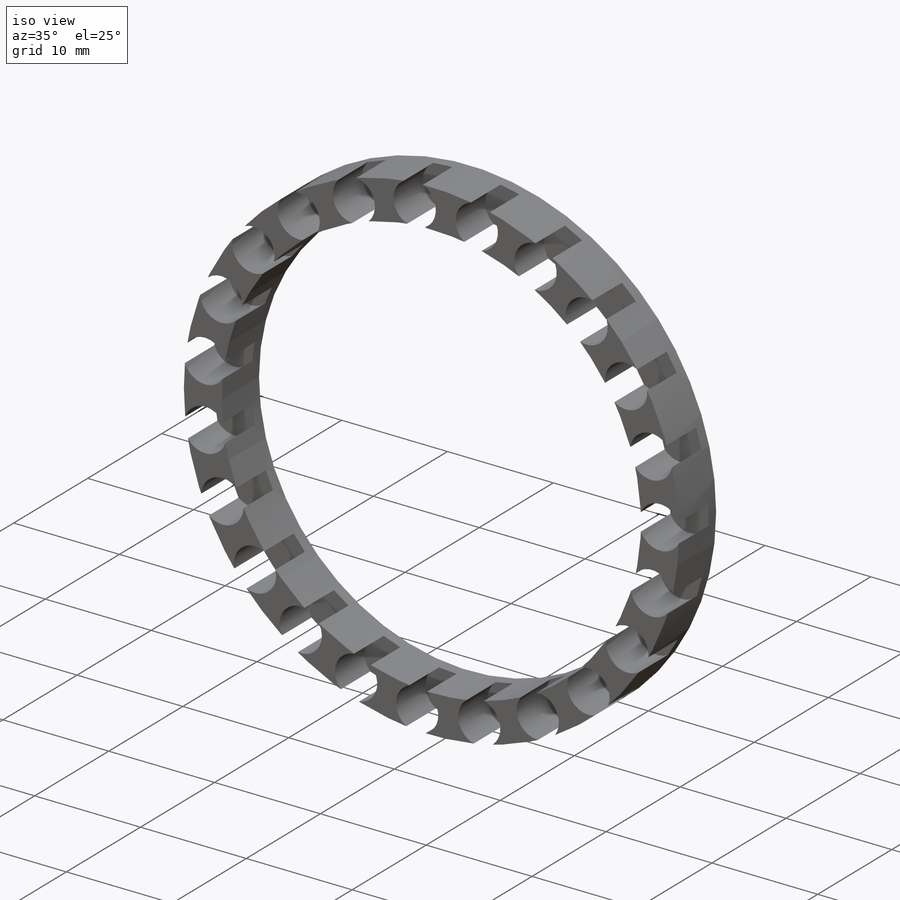
[diagram: iso view]
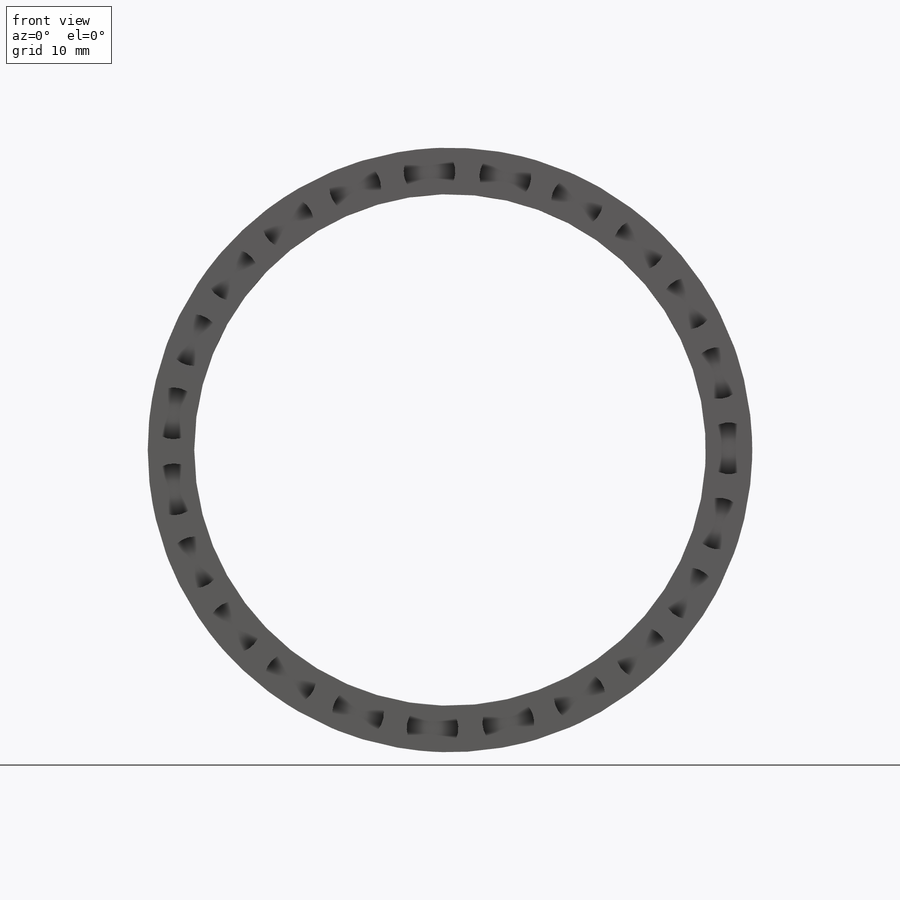
[diagram: front view]
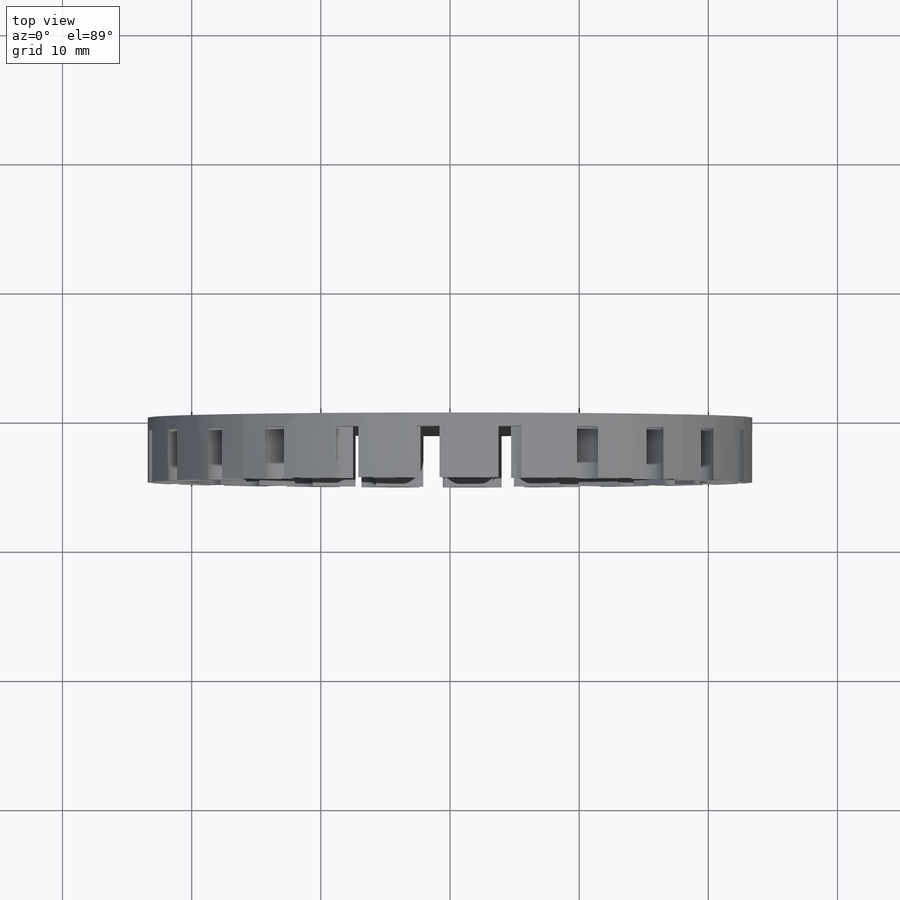
[diagram: top view]
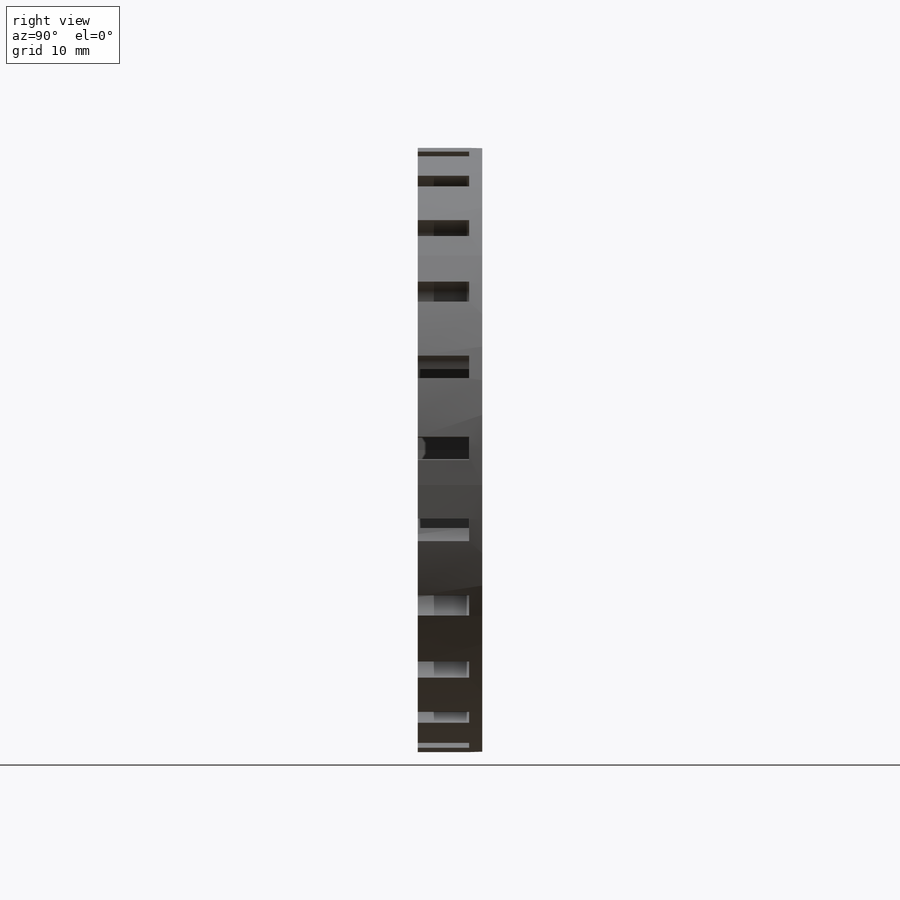
[diagram: right view]
SOLIDWORKS PART (.sldprt)
format: sldprt  version: not decoded by parser v0  size: 314,880 bytes
history: native  units: mm
features: plane x4, sketch x2, material x1, extrude x1, cut_revolve x1, pattern_circular x1 (+9 scaffold rows collapsed)
feature tree (19):
  scaffold x9  (default folders/planes/origin — collapsed)
  material  "材质 <未指定>"
  plane  "前视基准面"
  plane  "上视基准面"
  plane  "右视基准面"
  sketch  "草图1"  dims[D1=~35.550744mm]
  extrude  "凸台-拉伸1"  Depth=5mm
  plane  "基准面1"  Offset=21.6mm
  sketch  "草图2"  dims[D1=4.0mm D2=2.0mm D3=2.0mm]
  cut_revolve  "切除-旋转1"  Angle=360deg
  pattern_circular  "阵列(圆周)1"  Count=23  [1 undecoded]
decode coverage: 5 of 5 modeling features carry decoded parameters
note: ~ marks probable driven/reference dimensions
note: 1 parameter value undecoded
note: suppression state not decoded; provenance and decode notes live in map.json
